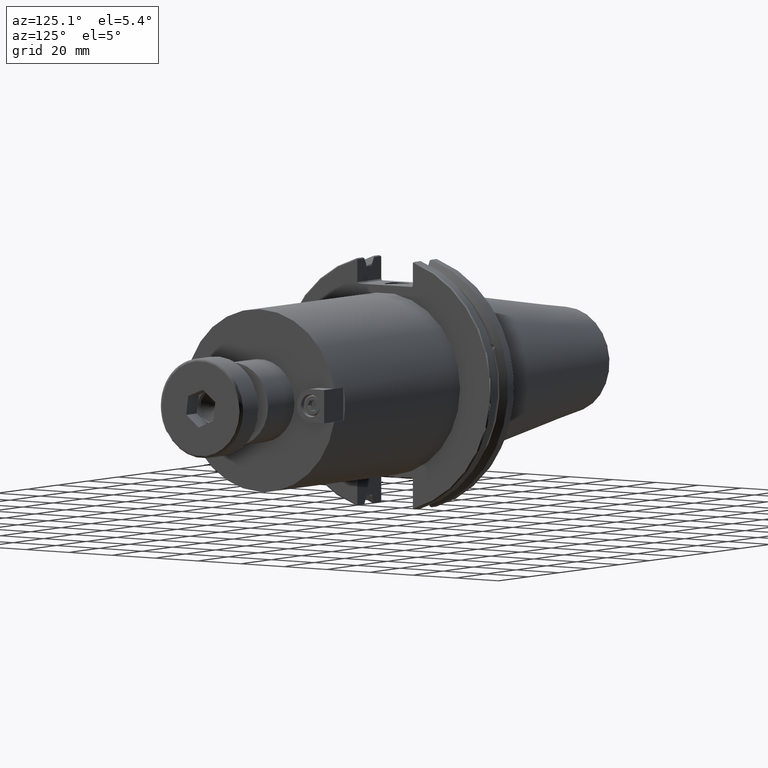
[diagram: clean part render]
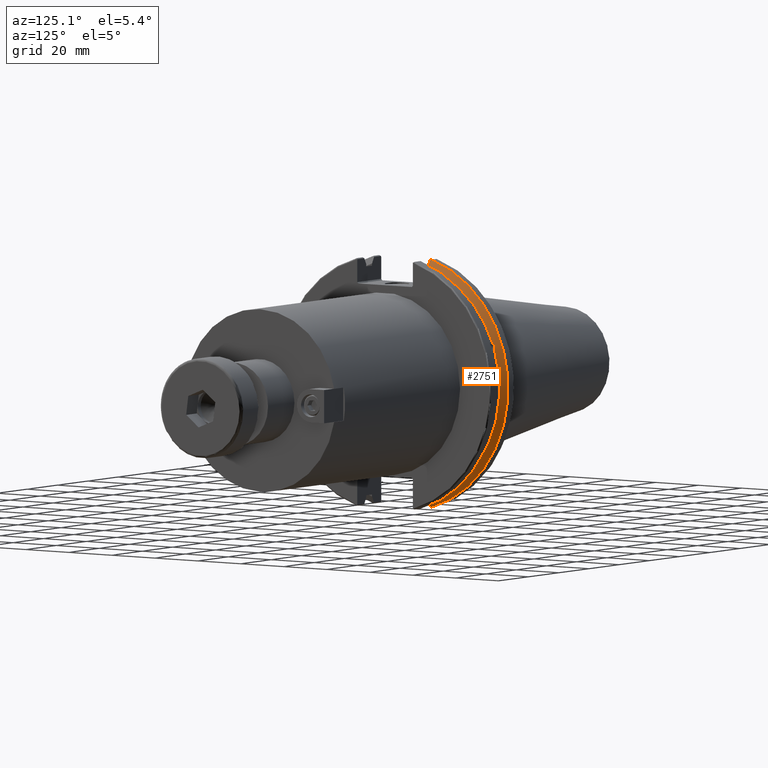
[diagram: same view with one face highlighted and labeled with its STEP entity id]
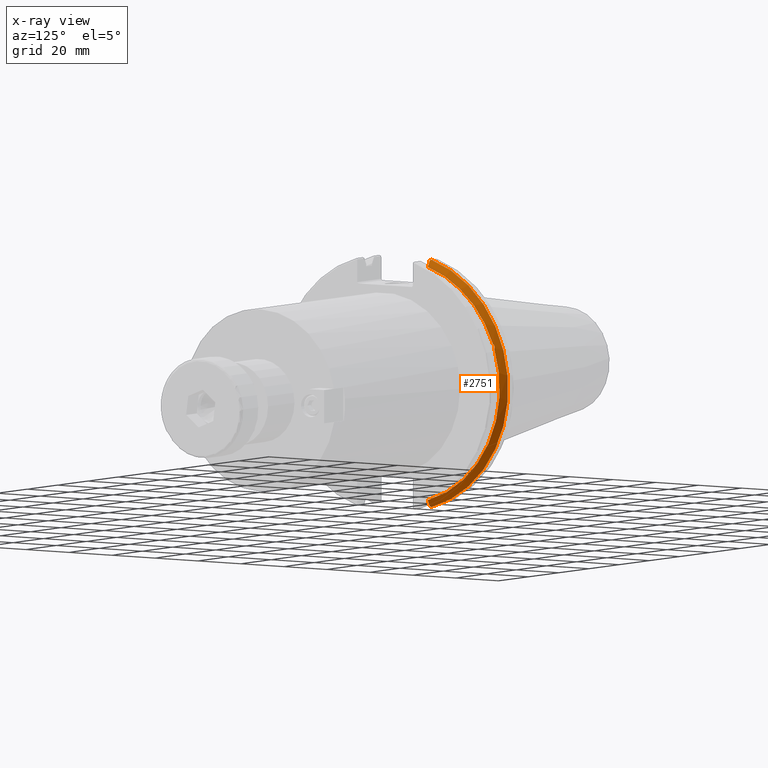
[diagram: x-ray of the same camera — body ghosted, the highlighted face saturated]
A machine part, auxiliary view. The second image highlights one B-rep face of the part: STEP entity #2751.
The next image is the same camera in x-ray: the body ghosted, the highlighted face saturated — about 0% of this face is hidden behind the body in this view.
In plain terms, the highlighted conical surface has half-angle 60 deg.
Its self-contained STEP definition (entity closure, byte-faithful):
#458=(
BOUNDED_CURVE()
B_SPLINE_CURVE(2,(#4737,#4738,#4739),.UNSPECIFIED.,.F.,.F.)
B_SPLINE_CURVE_WITH_KNOTS((3,3),(0.,0.275823910674652),.UNSPECIFIED.)
CURVE()
GEOMETRIC_REPRESENTATION_ITEM()
RATIONAL_B_SPLINE_CURVE((1.,1.00038235573731,1.00012873636533))
REPRESENTATION_ITEM('')
);
#459=(
BOUNDED_CURVE()
B_SPLINE_CURVE(2,(#4741,#4742,#4743),.UNSPECIFIED.,.F.,.F.)
B_SPLINE_CURVE_WITH_KNOTS((3,3),(0.,0.0648240472898323),.UNSPECIFIED.)
CURVE()
GEOMETRIC_REPRESENTATION_ITEM()
RATIONAL_B_SPLINE_CURVE((1.,1.00011477674853,1.00019140645976))
REPRESENTATION_ITEM('')
);
#460=(
BOUNDED_CURVE()
B_SPLINE_CURVE(2,(#4747,#4748,#4749),.UNSPECIFIED.,.F.,.F.)
B_SPLINE_CURVE_WITH_KNOTS((3,3),(0.325260944932483,0.390084992222205),
 .UNSPECIFIED.)
CURVE()
GEOMETRIC_REPRESENTATION_ITEM()
RATIONAL_B_SPLINE_CURVE((1.00019140645955,1.00011477674841,1.))
REPRESENTATION_ITEM('')
);
#461=(
BOUNDED_CURVE()
B_SPLINE_CURVE(2,(#4751,#4752,#4753),.UNSPECIFIED.,.F.,.F.)
B_SPLINE_CURVE_WITH_KNOTS((3,3),(0.0558332664491378,0.331657177124507),
 .UNSPECIFIED.)
CURVE()
GEOMETRIC_REPRESENTATION_ITEM()
RATIONAL_B_SPLINE_CURVE((1.00012873637135,1.00038235575519,1.))
REPRESENTATION_ITEM('')
);
#498=B_SPLINE_CURVE_WITH_KNOTS('',3,(#4690,#4691,#4692,#4693,#4694,#4695,
#4696,#4697,#4698,#4699,#4700,#4701,#4702,#4703),.UNSPECIFIED.,.F.,.F.,
(4,2,2,2,2,2,4),(0.42671286835872,0.441644498666905,0.480313313223129,0.518982127779352,
0.557650942335576,0.596319756891799,0.611251387199985),.UNSPECIFIED.);
#560=CONICAL_SURFACE('',#3084,47.8172386482472,1.0471975511966);
#637=CIRCLE('',#3085,46.4219772964944);
#638=CIRCLE('',#3086,49.2125);
#639=CIRCLE('',#3087,46.4219772964944);
#769=FACE_OUTER_BOUND('',#920,.T.);
#920=EDGE_LOOP('',(#2137,#2138,#2139,#2140,#2141,#2142,#2143,#2144));
#1447=VERTEX_POINT('',#4687);
#1448=VERTEX_POINT('',#4689);
#1452=VERTEX_POINT('',#4734);
#1453=VERTEX_POINT('',#4736);
#1454=VERTEX_POINT('',#4740);
#1455=VERTEX_POINT('',#4744);
#1456=VERTEX_POINT('',#4746);
#1457=VERTEX_POINT('',#4750);
#1707=EDGE_CURVE('',#1448,#1447,#498,.T.);
#1712=EDGE_CURVE('',#1452,#1447,#637,.T.);
#1713=EDGE_CURVE('',#1452,#1453,#458,.T.);
#1714=EDGE_CURVE('',#1454,#1453,#459,.T.);
#1715=EDGE_CURVE('',#1454,#1455,#638,.T.);
#1716=EDGE_CURVE('',#1456,#1455,#460,.T.);
#1717=EDGE_CURVE('',#1456,#1457,#461,.T.);
#1718=EDGE_CURVE('',#1448,#1457,#639,.T.);
#2137=ORIENTED_EDGE('',*,*,#1707,.T.);
#2138=ORIENTED_EDGE('',*,*,#1712,.F.);
#2139=ORIENTED_EDGE('',*,*,#1713,.T.);
#2140=ORIENTED_EDGE('',*,*,#1714,.F.);
#2141=ORIENTED_EDGE('',*,*,#1715,.T.);
#2142=ORIENTED_EDGE('',*,*,#1716,.F.);
#2143=ORIENTED_EDGE('',*,*,#1717,.T.);
#2144=ORIENTED_EDGE('',*,*,#1718,.F.);
#2751=ADVANCED_FACE('',(#769),#560,.T.);
#3084=AXIS2_PLACEMENT_3D('',#4733,#3532,#3533);
#3085=AXIS2_PLACEMENT_3D('',#4735,#3534,#3535);
#3086=AXIS2_PLACEMENT_3D('',#4745,#3536,#3537);
#3087=AXIS2_PLACEMENT_3D('',#4754,#3538,#3539);
#3532=DIRECTION('center_axis',(-1.,0.,0.));
#3533=DIRECTION('ref_axis',(0.,1.,0.));
#3534=DIRECTION('center_axis',(1.,0.,0.));
#3535=DIRECTION('ref_axis',(0.,0.,-1.));
#3536=DIRECTION('center_axis',(1.,0.,0.));
#3537=DIRECTION('ref_axis',(0.,0.,-1.));
#3538=DIRECTION('center_axis',(1.,0.,0.));
#3539=DIRECTION('ref_axis',(0.,0.,-1.));
#4687=CARTESIAN_POINT('',(9.2191,43.9096390749305,15.0646464421033));
#4689=CARTESIAN_POINT('',(9.2191,43.3201030900029,16.6843832486479));
#4690=CARTESIAN_POINT('Ctrl Pts',(9.21909999999999,43.3201030900029,16.6843832486479));
#4691=CARTESIAN_POINT('Ctrl Pts',(9.20211843903391,43.3613106941341,16.6592273018006));
#4692=CARTESIAN_POINT('Ctrl Pts',(9.18608675403322,43.4012416983557,16.6326763251437));
#4693=CARTESIAN_POINT('Ctrl Pts',(9.13238673845037,43.5391037343221,16.5325130832406));
#4694=CARTESIAN_POINT('Ctrl Pts',(9.09621610663555,43.6406982153491,16.4411807953719));
#4695=CARTESIAN_POINT('Ctrl Pts',(9.04690868251975,43.8110833825827,16.2291323464527));
#4696=CARTESIAN_POINT('Ctrl Pts',(9.0341,43.8794096049168,16.10796730316));
#4697=CARTESIAN_POINT('Ctrl Pts',(9.0341,43.9675796948952,15.8657219718732));
#4698=CARTESIAN_POINT('Ctrl Pts',(9.04690868251975,43.9931221605126,15.7289849146254));
#4699=CARTESIAN_POINT('Ctrl Pts',(9.09621610663555,43.9989016655819,15.4570249042867));
#4700=CARTESIAN_POINT('Ctrl Pts',(9.13238673845037,43.9797830409458,15.3217566390708));
#4701=CARTESIAN_POINT('Ctrl Pts',(9.18608675403322,43.9385582852181,15.1564111356409));
#4702=CARTESIAN_POINT('Ctrl Pts',(9.20211843903391,43.9250360001461,15.1104047527575));
#4703=CARTESIAN_POINT('Ctrl Pts',(9.2191,43.9096390749305,15.0646464421033));
#4733=CARTESIAN_POINT('Origin',(8.41354548297563,0.,0.));
#4734=CARTESIAN_POINT('',(9.2191,12.95,-44.5791147973604));
#4735=CARTESIAN_POINT('Origin',(9.2191,0.,0.));
#4736=CARTESIAN_POINT('',(7.88638960562424,12.95,-46.9780755322918));
#4737=CARTESIAN_POINT('Ctrl Pts',(9.2191,12.95,-44.5791147973604));
#4738=CARTESIAN_POINT('Ctrl Pts',(8.57020449055827,12.95,-45.7494966802153));
#4739=CARTESIAN_POINT('Ctrl Pts',(7.88638960562424,12.95,-46.9780755322918));
#4740=CARTESIAN_POINT('',(7.60799096595127,13.4317035994433,-47.3440544806494));
#4741=CARTESIAN_POINT('Ctrl Pts',(7.60799096595127,13.4317035994433,-47.3440544806494));
#4742=CARTESIAN_POINT('Ctrl Pts',(7.74826896663818,13.1896660169966,-47.1601640966265));
#4743=CARTESIAN_POINT('Ctrl Pts',(7.88638960562424,12.95,-46.9780755322918));
#4744=CARTESIAN_POINT('',(7.60799096595127,13.4317035994433,47.3440544806494));
#4745=CARTESIAN_POINT('Origin',(7.60799096595127,0.,0.));
#4746=CARTESIAN_POINT('',(7.88638960562424,12.95,46.9780755322918));
#4747=CARTESIAN_POINT('Ctrl Pts',(7.88638960562424,12.95,46.9780755322917));
#4748=CARTESIAN_POINT('Ctrl Pts',(7.74826896663821,13.1896660169966,47.1601640966264));
#4749=CARTESIAN_POINT('Ctrl Pts',(7.60799096595127,13.4317035994433,47.3440544806494));
#4750=CARTESIAN_POINT('',(9.2191,12.95,44.5791147973604));
#4751=CARTESIAN_POINT('Ctrl Pts',(7.88638960562424,12.95,46.9780755322918));
#4752=CARTESIAN_POINT('Ctrl Pts',(8.57020449055492,12.95,45.7494966802213));
#4753=CARTESIAN_POINT('Ctrl Pts',(9.2191,12.95,44.5791147973604));
#4754=CARTESIAN_POINT('Origin',(9.2191,0.,0.));